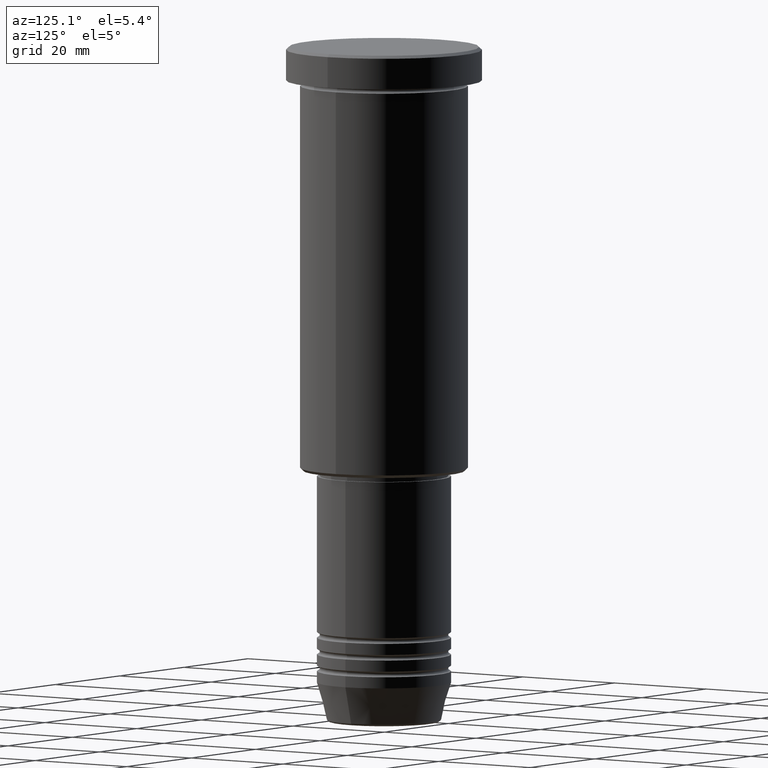
[diagram: clean part render]
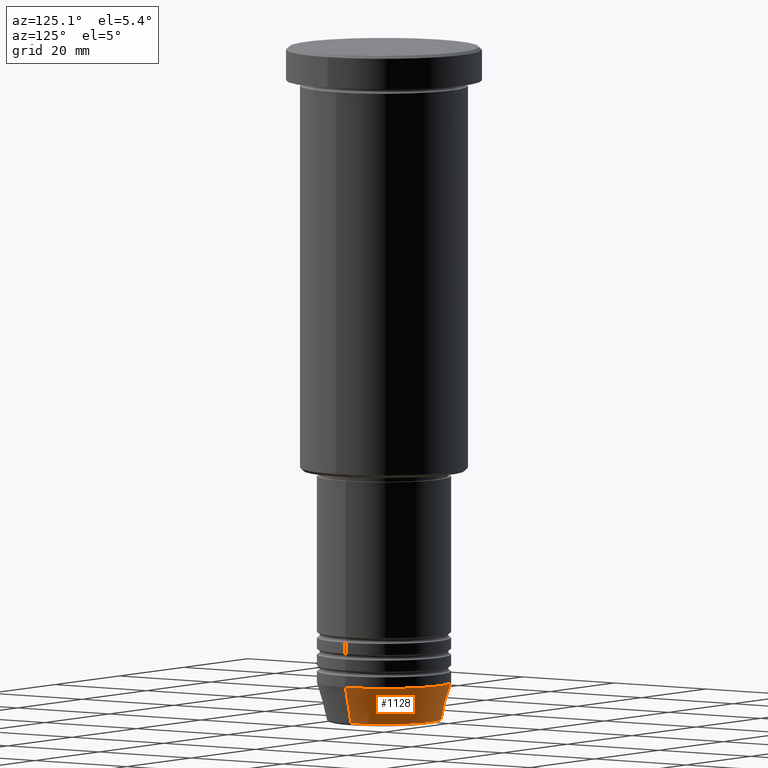
[diagram: same view with one face highlighted and labeled with its STEP entity id]
A machine part, auxiliary view. The second image highlights one B-rep face of the part: STEP entity #1128.
In plain terms, the highlighted conical surface has half-angle 15 deg.
Its self-contained STEP definition (entity closure, byte-faithful):
#46 = ORIENTED_EDGE ( 'NONE', *, *, #385, .T. ) ;
#75 = VERTEX_POINT ( 'NONE', #760 ) ;
#81 = EDGE_LOOP ( 'NONE', ( #46, #695, #873, #1014 ) ) ;
#176 = CARTESIAN_POINT ( 'NONE',  ( 0.000000000000000000, 0.000000000000000000, -120.6294095225512422 ) ) ;
#192 = CIRCLE ( 'NONE', #846, 12.00000000000000000 ) ;
#242 = AXIS2_PLACEMENT_3D ( 'NONE', #836, #1024, #667 ) ;
#251 = DIRECTION ( 'NONE',  ( -0.000000000000000000, -0.000000000000000000, 1.000000000000000000 ) ) ;
#302 = CIRCLE ( 'NONE', #970, 10.22365507213719305 ) ;
#315 = CONICAL_SURFACE ( 'NONE', #242, 12.00000000000000000, 0.2617993877991500740 ) ;
#385 = EDGE_CURVE ( 'NONE', #895, #75, #302, .T. ) ;
#407 = DIRECTION ( 'NONE',  ( 1.000000000000000000, 0.000000000000000000, 0.000000000000000000 ) ) ;
#411 = LINE ( 'NONE', #1057, #935 ) ;
#607 = CARTESIAN_POINT ( 'NONE',  ( 10.22365507213719305, 0.000000000000000000, -120.6294095225512422 ) ) ;
#617 = EDGE_CURVE ( 'NONE', #1123, #990, #192, .T. ) ;
#643 = CARTESIAN_POINT ( 'NONE',  ( 12.00000000000000000, 0.000000000000000000, -113.9999999999999858 ) ) ;
#667 = DIRECTION ( 'NONE',  ( 1.000000000000000000, 0.000000000000000000, 0.000000000000000000 ) ) ;
#695 = ORIENTED_EDGE ( 'NONE', *, *, #831, .T. ) ;
#706 = LINE ( 'NONE', #991, #1055 ) ;
#715 = DIRECTION ( 'NONE',  ( 0.2588190451025213501, 0.000000000000000000, 0.9659258262890680902 ) ) ;
#760 = CARTESIAN_POINT ( 'NONE',  ( -10.22365507213719305, 1.360806402472382744E-15, -120.6294095225512422 ) ) ;
#831 = EDGE_CURVE ( 'NONE', #75, #990, #411, .T. ) ;
#836 = CARTESIAN_POINT ( 'NONE',  ( 0.000000000000000000, 0.000000000000000000, -113.9999999999999858 ) ) ;
#846 = AXIS2_PLACEMENT_3D ( 'NONE', #1114, #1026, #407 ) ;
#855 = DIRECTION ( 'NONE',  ( -0.2588190451025213501, 3.169619151431772337E-17, 0.9659258262890680902 ) ) ;
#873 = ORIENTED_EDGE ( 'NONE', *, *, #617, .F. ) ;
#877 = CARTESIAN_POINT ( 'NONE',  ( -12.00000000000000000, 1.469576158976823947E-15, -113.9999999999999858 ) ) ;
#895 = VERTEX_POINT ( 'NONE', #607 ) ;
#935 = VECTOR ( 'NONE', #855, 1000.000000000000000 ) ;
#970 = AXIS2_PLACEMENT_3D ( 'NONE', #176, #251, #1181 ) ;
#990 = VERTEX_POINT ( 'NONE', #877 ) ;
#991 = CARTESIAN_POINT ( 'NONE',  ( 12.00000000000000000, 0.000000000000000000, -113.9999999999999858 ) ) ;
#995 = EDGE_CURVE ( 'NONE', #895, #1123, #706, .T. ) ;
#1014 = ORIENTED_EDGE ( 'NONE', *, *, #995, .F. ) ;
#1024 = DIRECTION ( 'NONE',  ( -0.000000000000000000, -0.000000000000000000, 1.000000000000000000 ) ) ;
#1026 = DIRECTION ( 'NONE',  ( -0.000000000000000000, -0.000000000000000000, 1.000000000000000000 ) ) ;
#1030 = FACE_OUTER_BOUND ( 'NONE', #81, .T. ) ;
#1055 = VECTOR ( 'NONE', #715, 1000.000000000000000 ) ;
#1057 = CARTESIAN_POINT ( 'NONE',  ( -12.00000000000000000, 1.469576158976823947E-15, -113.9999999999999858 ) ) ;
#1114 = CARTESIAN_POINT ( 'NONE',  ( 0.000000000000000000, 0.000000000000000000, -113.9999999999999858 ) ) ;
#1123 = VERTEX_POINT ( 'NONE', #643 ) ;
#1128 = ADVANCED_FACE ( 'NONE', ( #1030 ), #315, .T. ) ;
#1181 = DIRECTION ( 'NONE',  ( 1.000000000000000000, 0.000000000000000000, 0.000000000000000000 ) ) ;